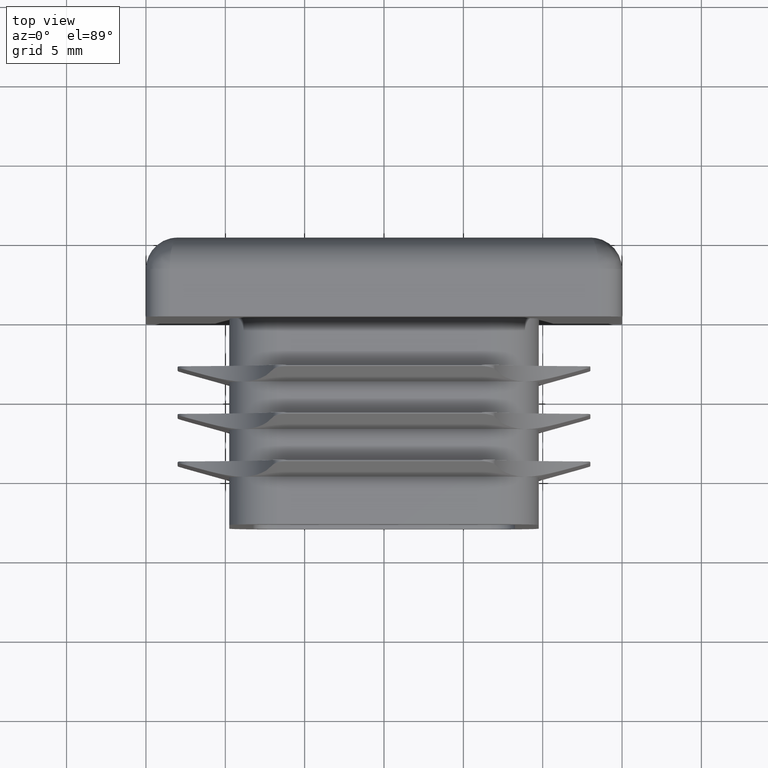
[diagram: clean part render]
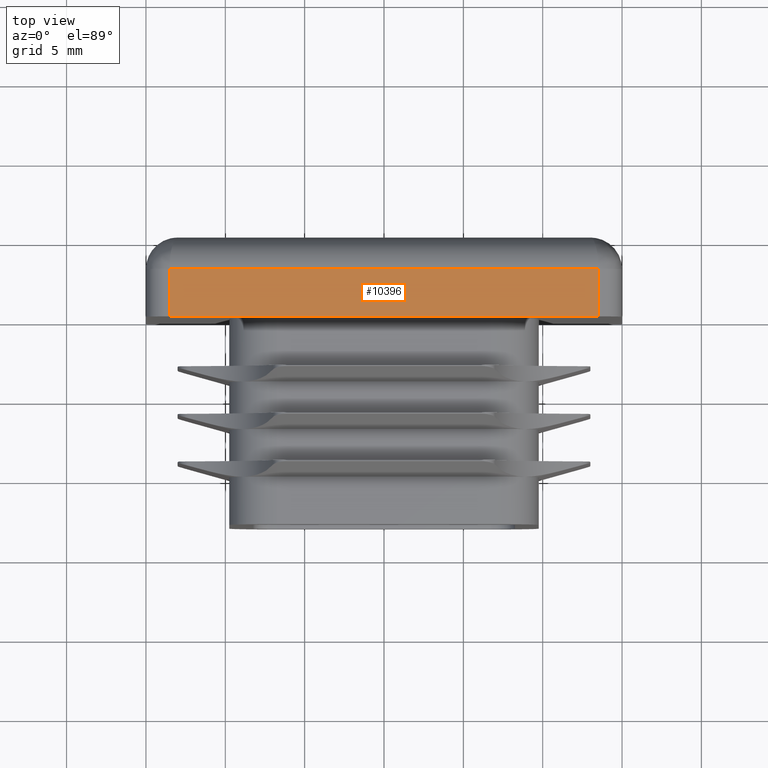
[diagram: same view with one face highlighted and labeled with its STEP entity id]
A machine part, top view. The second image highlights one B-rep face of the part: STEP entity #10396.
In plain terms, the highlighted planar face has unit normal (0, 0, -1).
Its self-contained STEP definition (entity closure, byte-faithful):
#1714 = VECTOR ( 'NONE', #1925, 1000.000000000000000 ) ;
#1925 = DIRECTION ( 'NONE',  ( -0.000000000000000000, 1.000000000000000000, -0.000000000000000000 ) ) ;
#2729 = LINE ( 'NONE', #8428, #1714 ) ;
#3047 = EDGE_LOOP ( 'NONE', ( #4653, #15046, #17044, #14038 ) ) ;
#3956 = PLANE ( 'NONE',  #4931 ) ;
#4148 = VERTEX_POINT ( 'NONE', #16656 ) ;
#4653 = ORIENTED_EDGE ( 'NONE', *, *, #13622, .T. ) ;
#4931 = AXIS2_PLACEMENT_3D ( 'NONE', #18122, #19716, #11948 ) ;
#5536 = DIRECTION ( 'NONE',  ( 0.000000000000000000, -1.000000000000000000, 0.000000000000000000 ) ) ;
#5981 = CARTESIAN_POINT ( 'NONE',  ( -13.49999999999999289, 3.000000000000000000, 15.00000000000001421 ) ) ;
#6191 = CARTESIAN_POINT ( 'NONE',  ( -13.49999999999999289, 3.000000000000000000, 15.00000000000001421 ) ) ;
#6816 = FACE_OUTER_BOUND ( 'NONE', #3047, .T. ) ;
#7566 = VECTOR ( 'NONE', #19397, 1000.000000000000000 ) ;
#8319 = CARTESIAN_POINT ( 'NONE',  ( -14.99999999999999289, 0.000000000000000000, 15.00000000000001421 ) ) ;
#8428 = CARTESIAN_POINT ( 'NONE',  ( 13.50000000000000533, 5.000000000000000000, 15.00000000000001421 ) ) ;
#9443 = DIRECTION ( 'NONE',  ( -1.000000000000000000, -0.000000000000000000, -0.000000000000000000 ) ) ;
#10396 = ADVANCED_FACE ( 'NONE', ( #6816 ), #3956, .F. ) ;
#11948 = DIRECTION ( 'NONE',  ( -1.000000000000000000, 0.000000000000000000, -0.000000000000000000 ) ) ;
#12357 = LINE ( 'NONE', #19851, #15823 ) ;
#13095 = VERTEX_POINT ( 'NONE', #14313 ) ;
#13622 = EDGE_CURVE ( 'NONE', #13095, #4148, #2729, .T. ) ;
#13826 = LINE ( 'NONE', #6191, #15074 ) ;
#13832 = VERTEX_POINT ( 'NONE', #15595 ) ;
#14038 = ORIENTED_EDGE ( 'NONE', *, *, #19019, .T. ) ;
#14237 = VERTEX_POINT ( 'NONE', #5981 ) ;
#14313 = CARTESIAN_POINT ( 'NONE',  ( 13.50000000000000533, 0.000000000000000000, 15.00000000000001421 ) ) ;
#14843 = EDGE_CURVE ( 'NONE', #14237, #13832, #12357, .T. ) ;
#15046 = ORIENTED_EDGE ( 'NONE', *, *, #15659, .T. ) ;
#15074 = VECTOR ( 'NONE', #9443, 1000.000000000000000 ) ;
#15595 = CARTESIAN_POINT ( 'NONE',  ( -13.49999999999999289, 0.000000000000000000, 15.00000000000001421 ) ) ;
#15659 = EDGE_CURVE ( 'NONE', #4148, #14237, #13826, .T. ) ;
#15823 = VECTOR ( 'NONE', #5536, 1000.000000000000000 ) ;
#16656 = CARTESIAN_POINT ( 'NONE',  ( 13.50000000000000533, 3.000000000000000000, 15.00000000000001421 ) ) ;
#17044 = ORIENTED_EDGE ( 'NONE', *, *, #14843, .T. ) ;
#18122 = CARTESIAN_POINT ( 'NONE',  ( -14.99999999999999289, 5.000000000000000000, 15.00000000000001421 ) ) ;
#19019 = EDGE_CURVE ( 'NONE', #13832, #13095, #19199, .T. ) ;
#19199 = LINE ( 'NONE', #8319, #7566 ) ;
#19397 = DIRECTION ( 'NONE',  ( 1.000000000000000000, 0.000000000000000000, 0.000000000000000000 ) ) ;
#19716 = DIRECTION ( 'NONE',  ( 0.000000000000000000, 0.000000000000000000, -1.000000000000000000 ) ) ;
#19851 = CARTESIAN_POINT ( 'NONE',  ( -13.49999999999999289, 5.000000000000000000, 15.00000000000001421 ) ) ;